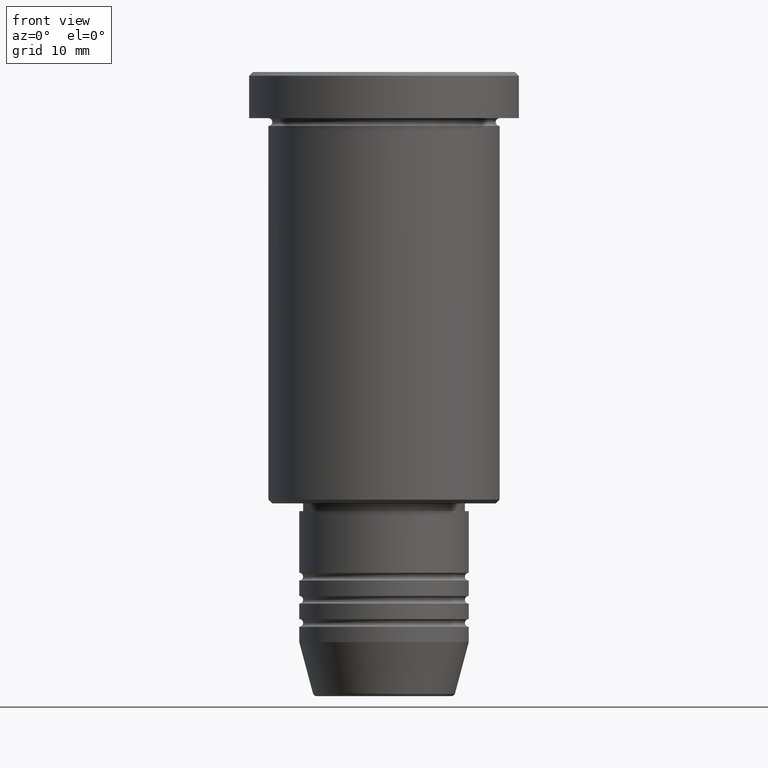
[diagram: clean part render]
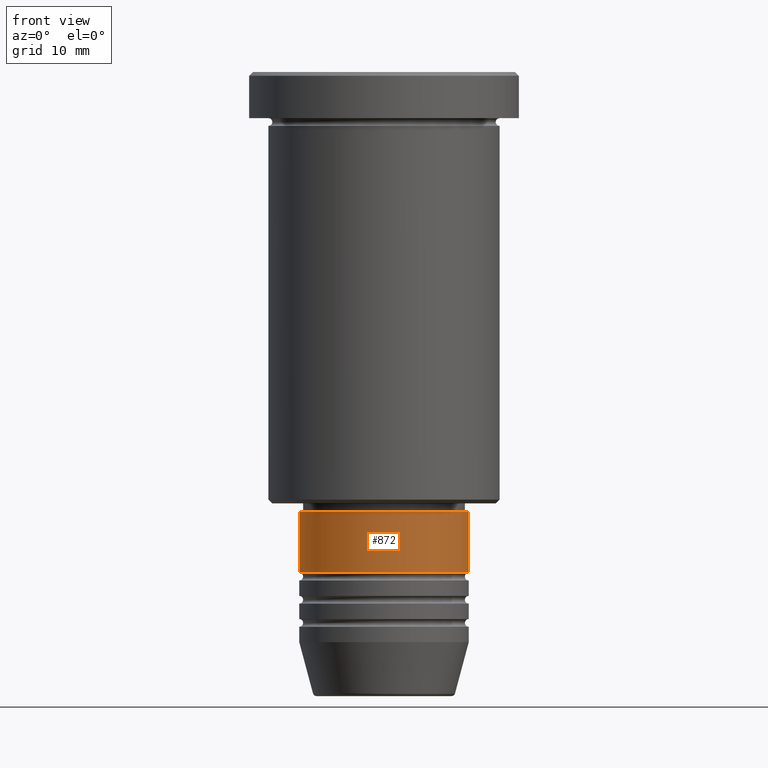
[diagram: same view with one face highlighted and labeled with its STEP entity id]
A machine part, front view. The second image highlights one B-rep face of the part: STEP entity #872.
In plain terms, the highlighted cylindrical surface (partial cylindrical patch) has radius 11 mm, axis along (-0, -0, 1).
Its self-contained STEP definition (entity closure, byte-faithful):
#51 = EDGE_CURVE ( 'NONE', #737, #251, #1092, .T. ) ;
#77 = LINE ( 'NONE', #984, #393 ) ;
#124 = EDGE_CURVE ( 'NONE', #251, #605, #697, .T. ) ;
#125 = AXIS2_PLACEMENT_3D ( 'NONE', #803, #968, #1059 ) ;
#133 = ORIENTED_EDGE ( 'NONE', *, *, #124, .T. ) ;
#251 = VERTEX_POINT ( 'NONE', #993 ) ;
#254 = VECTOR ( 'NONE', #970, 1000.000000000000000 ) ;
#264 = ORIENTED_EDGE ( 'NONE', *, *, #917, .F. ) ;
#266 = DIRECTION ( 'NONE',  ( 1.000000000000000000, 0.000000000000000000, 0.000000000000000000 ) ) ;
#339 = CARTESIAN_POINT ( 'NONE',  ( -11.00000000000000000, 1.347111479062088405E-15, -57.00000000000000711 ) ) ;
#350 = CYLINDRICAL_SURFACE ( 'NONE', #470, 11.00000000000000000 ) ;
#393 = VECTOR ( 'NONE', #696, 1000.000000000000000 ) ;
#446 = DIRECTION ( 'NONE',  ( -0.000000000000000000, -0.000000000000000000, 1.000000000000000000 ) ) ;
#470 = AXIS2_PLACEMENT_3D ( 'NONE', #1153, #1080, #266 ) ;
#487 = AXIS2_PLACEMENT_3D ( 'NONE', #1154, #446, #813 ) ;
#547 = VERTEX_POINT ( 'NONE', #339 ) ;
#559 = EDGE_CURVE ( 'NONE', #547, #605, #712, .T. ) ;
#574 = ORIENTED_EDGE ( 'NONE', *, *, #51, .T. ) ;
#602 = CARTESIAN_POINT ( 'NONE',  ( 11.00000000000000000, 0.000000000000000000, -57.00000000000000711 ) ) ;
#605 = VERTEX_POINT ( 'NONE', #602 ) ;
#621 = CARTESIAN_POINT ( 'NONE',  ( 11.00000000000000000, 0.000000000000000000, 0.000000000000000000 ) ) ;
#660 = ORIENTED_EDGE ( 'NONE', *, *, #559, .F. ) ;
#696 = DIRECTION ( 'NONE',  ( -0.000000000000000000, -0.000000000000000000, 1.000000000000000000 ) ) ;
#697 = LINE ( 'NONE', #621, #254 ) ;
#712 = CIRCLE ( 'NONE', #125, 11.00000000000000000 ) ;
#737 = VERTEX_POINT ( 'NONE', #910 ) ;
#803 = CARTESIAN_POINT ( 'NONE',  ( 0.000000000000000000, 0.000000000000000000, -57.00000000000000711 ) ) ;
#804 = FACE_OUTER_BOUND ( 'NONE', #824, .T. ) ;
#813 = DIRECTION ( 'NONE',  ( 1.000000000000000000, 0.000000000000000000, 0.000000000000000000 ) ) ;
#824 = EDGE_LOOP ( 'NONE', ( #264, #574, #133, #660 ) ) ;
#872 = ADVANCED_FACE ( 'NONE', ( #804 ), #350, .T. ) ;
#910 = CARTESIAN_POINT ( 'NONE',  ( -11.00000000000000000, 1.347111479062088405E-15, -64.99999999999998579 ) ) ;
#917 = EDGE_CURVE ( 'NONE', #737, #547, #77, .T. ) ;
#968 = DIRECTION ( 'NONE',  ( -0.000000000000000000, -0.000000000000000000, 1.000000000000000000 ) ) ;
#970 = DIRECTION ( 'NONE',  ( -0.000000000000000000, -0.000000000000000000, 1.000000000000000000 ) ) ;
#984 = CARTESIAN_POINT ( 'NONE',  ( -11.00000000000000000, 1.347111479062088405E-15, 0.000000000000000000 ) ) ;
#993 = CARTESIAN_POINT ( 'NONE',  ( 11.00000000000000000, 0.000000000000000000, -64.99999999999998579 ) ) ;
#1059 = DIRECTION ( 'NONE',  ( 1.000000000000000000, 0.000000000000000000, 0.000000000000000000 ) ) ;
#1080 = DIRECTION ( 'NONE',  ( -0.000000000000000000, -0.000000000000000000, 1.000000000000000000 ) ) ;
#1092 = CIRCLE ( 'NONE', #487, 11.00000000000000000 ) ;
#1153 = CARTESIAN_POINT ( 'NONE',  ( 0.000000000000000000, 0.000000000000000000, 0.000000000000000000 ) ) ;
#1154 = CARTESIAN_POINT ( 'NONE',  ( 0.000000000000000000, 0.000000000000000000, -64.99999999999998579 ) ) ;